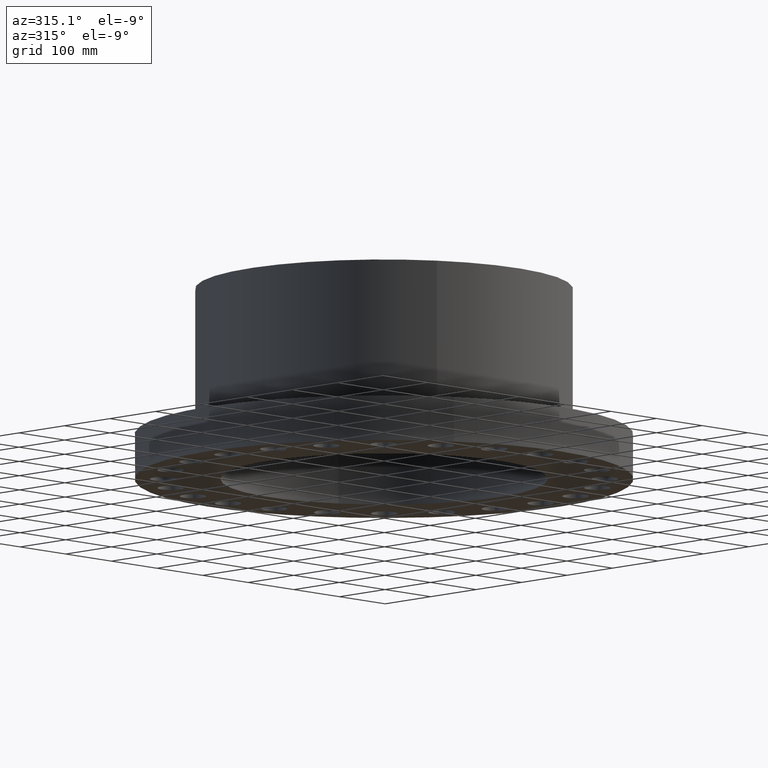
[diagram: clean part render]
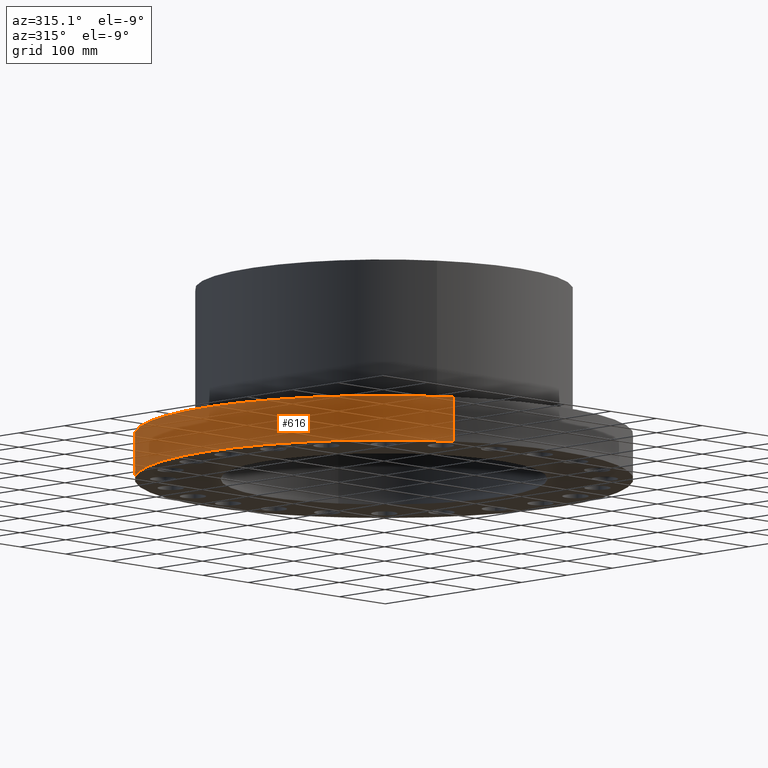
[diagram: same view with one face highlighted and labeled with its STEP entity id]
A machine part, auxiliary view. The second image highlights one B-rep face of the part: STEP entity #616.
In plain terms, the highlighted cylindrical surface (partial cylindrical patch) has radius 387.35 mm, axis along (0, 0, -1).
Its self-contained STEP definition (entity closure, byte-faithful):
#108=AXIS2_PLACEMENT_3D('Circle Axis2P3D',#106,#107,$) ;
#573=AXIS2_PLACEMENT_3D('Cylinder Axis2P3D',#570,#571,#572) ;
#577=AXIS2_PLACEMENT_3D('Circle Axis2P3D',#575,#576,$) ;
#586=AXIS2_PLACEMENT_3D('Circle Axis2P3D',#584,#585,$) ;
#593=AXIS2_PLACEMENT_3D('Circle Axis2P3D',#591,#592,$) ;
#101=CARTESIAN_POINT('Vertex',(7.31123946374,13.3831340689,2.75000000001)) ;
#103=CARTESIAN_POINT('Vertex',(-7.31123946374,-13.3831340689,2.75000000001)) ;
#106=CARTESIAN_POINT('Axis2P3D Location',(0.,0.,2.75000000001)) ;
#570=CARTESIAN_POINT('Axis2P3D Location',(0.,0.,5.75000000002)) ;
#575=CARTESIAN_POINT('Axis2P3D Location',(0.,0.,2.23792987641E-015)) ;
#579=CARTESIAN_POINT('Vertex',(-3.6314189292E-014,15.2500000001,0.)) ;
#581=CARTESIAN_POINT('Vertex',(7.31123946374,13.3831340689,2.23792987641E-015)) ;
#584=CARTESIAN_POINT('Axis2P3D Location',(0.,0.,2.23792987641E-015)) ;
#588=CARTESIAN_POINT('Vertex',(-15.2500000001,-8.63994681895E-015,0.)) ;
#591=CARTESIAN_POINT('Axis2P3D Location',(0.,0.,2.23792987641E-015)) ;
#595=CARTESIAN_POINT('Vertex',(-7.31123946374,-13.3831340689,2.23792987641E-015)) ;
#598=CARTESIAN_POINT('Line Origine',(-7.31123946374,-13.3831340689,1.37500000001)) ;
#603=CARTESIAN_POINT('Line Origine',(7.31123946374,13.3831340689,1.37500000001)) ;
#107=DIRECTION('Axis2P3D Direction',(0.,0.,-0.0393700787402)) ;
#571=DIRECTION('Axis2P3D Direction',(0.,0.,-0.0393700787402)) ;
#572=DIRECTION('Axis2P3D XDirection',(0.0188750212049,0.0345504945626,0.)) ;
#576=DIRECTION('Axis2P3D Direction',(0.,0.,-0.0393700787402)) ;
#585=DIRECTION('Axis2P3D Direction',(0.,0.,-0.0393700787402)) ;
#592=DIRECTION('Axis2P3D Direction',(0.,0.,-0.0393700787402)) ;
#599=DIRECTION('Vector Direction',(0.,0.,-0.0393700787402)) ;
#604=DIRECTION('Vector Direction',(0.,0.,-0.0393700787402)) ;
#600=VECTOR('Line Direction',#599,0.0393700787402) ;
#605=VECTOR('Line Direction',#604,0.0393700787402) ;
#609=ORIENTED_EDGE('',*,*,#583,.F.) ;
#610=ORIENTED_EDGE('',*,*,#590,.F.) ;
#611=ORIENTED_EDGE('',*,*,#597,.F.) ;
#612=ORIENTED_EDGE('',*,*,#602,.T.) ;
#613=ORIENTED_EDGE('',*,*,#110,.T.) ;
#614=ORIENTED_EDGE('',*,*,#607,.F.) ;
#616=ADVANCED_FACE('PartBody',(#615),#574,.T.) ;
#109=CIRCLE('generated circle',#108,15.2500000001) ;
#578=CIRCLE('generated circle',#577,15.2500000001) ;
#587=CIRCLE('generated circle',#586,15.2500000001) ;
#594=CIRCLE('generated circle',#593,15.2500000001) ;
#574=CYLINDRICAL_SURFACE('generated cylinder',#573,15.2500000001) ;
#110=EDGE_CURVE('',#104,#102,#109,.T.) ;
#583=EDGE_CURVE('',#580,#582,#578,.T.) ;
#590=EDGE_CURVE('',#589,#580,#587,.T.) ;
#597=EDGE_CURVE('',#596,#589,#594,.T.) ;
#602=EDGE_CURVE('',#596,#104,#601,.F.) ;
#607=EDGE_CURVE('',#582,#102,#606,.F.) ;
#608=EDGE_LOOP('',(#609,#610,#611,#612,#613,#614)) ;
#615=FACE_OUTER_BOUND('',#608,.T.) ;
#601=LINE('Line',#598,#600) ;
#606=LINE('Line',#603,#605) ;
#102=VERTEX_POINT('',#101) ;
#104=VERTEX_POINT('',#103) ;
#580=VERTEX_POINT('',#579) ;
#582=VERTEX_POINT('',#581) ;
#589=VERTEX_POINT('',#588) ;
#596=VERTEX_POINT('',#595) ;